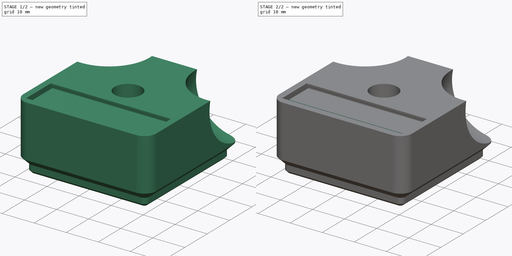
[diagram: build sequence overview — one tinted view per stage of 2, left to right]
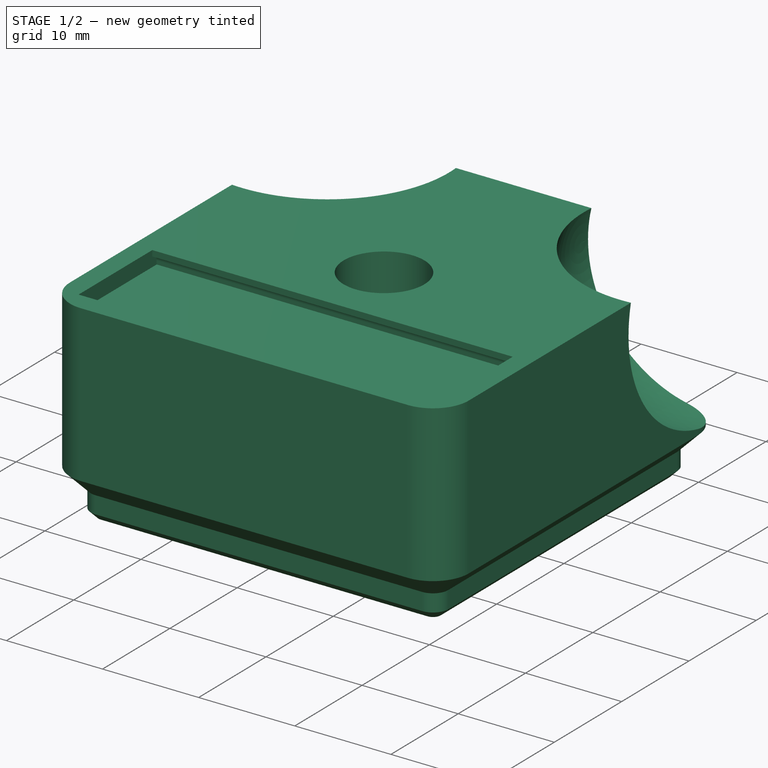
[diagram: stage 1 of 2 — iso view after this stage's code; geometry added in this stage tinted green]
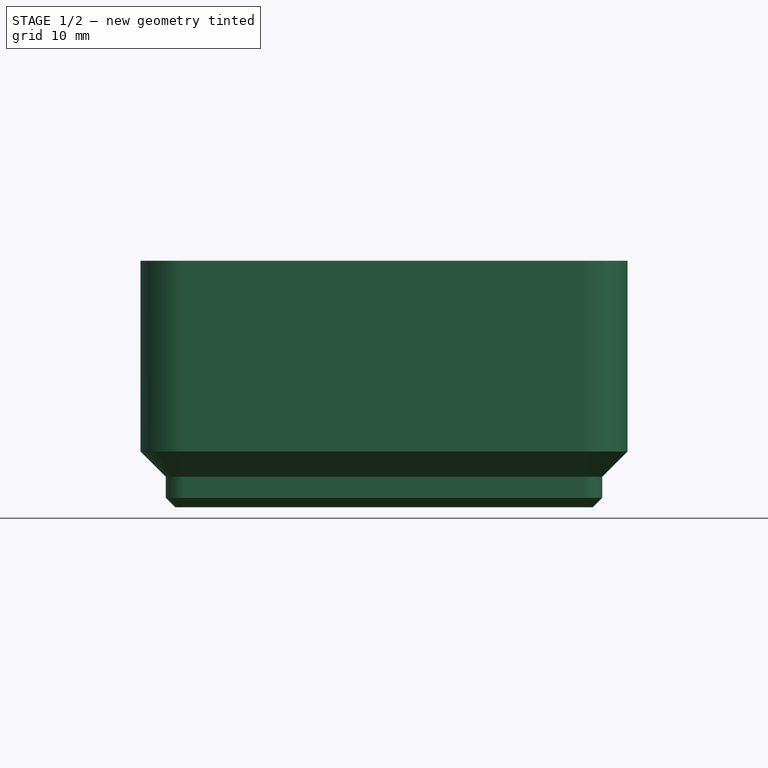
[diagram: stage 1 of 2 — front view after this stage's code; geometry added in this stage tinted green]
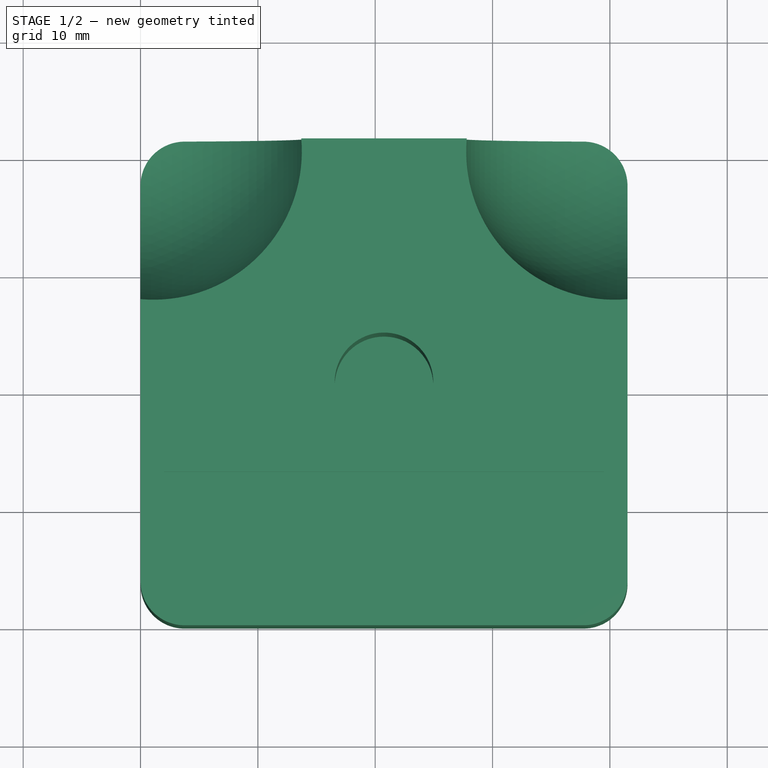
[diagram: stage 1 of 2 — top view after this stage's code; geometry added in this stage tinted green]
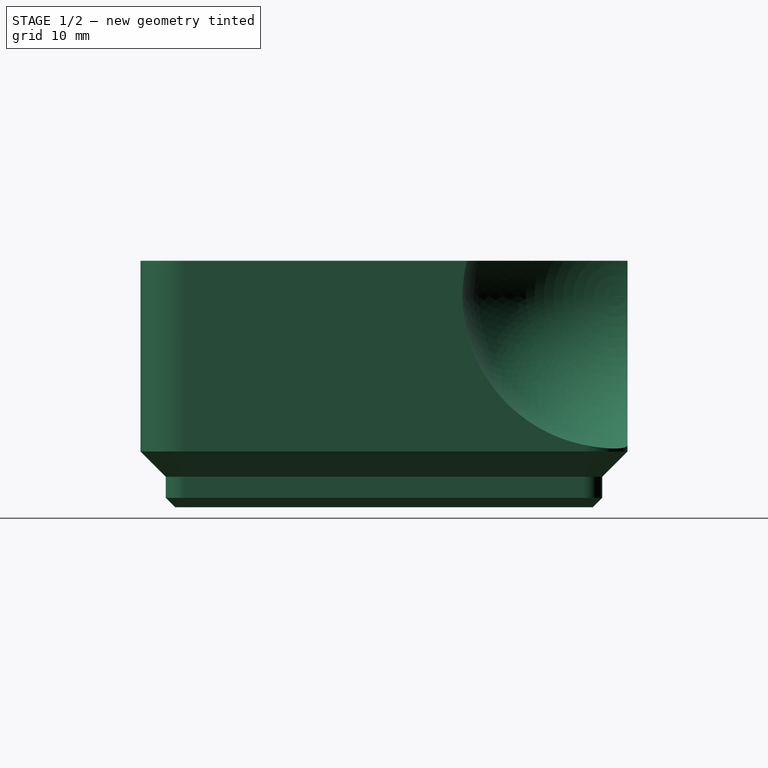
[diagram: stage 1 of 2 — right view after this stage's code; geometry added in this stage tinted green]
FCSTD DOCUMENT  (FreeCAD 1.0R39319 (Git))
Label: gridfinity-router-bit-holder_gfrouterbit8mm-remix
License: All rights reserved
LicenseURL: https://en.wikipedia.org/wiki/All_rights_reserved
objects: Sketcher::SketchObject×2, PartDesign::Pocket×2, Part::Feature×1, PartDesign::FeatureBase×1, PartDesign::Body×1
note: 14 computed .brp shape members not serialized (recipe doc carries the construction recipe); baked Part::Feature solids carry a one-line shape summary decoded from their .brp

FEATURE [Part::Feature] Part__Feature  label="GFRouterBit1-4in"
  shape: bbox 41.5 x 53.4 x 31 mm, 47 faces (baked)
FEATURE [PartDesign::FeatureBase] BaseFeature
  BaseFeature = -> Part__Feature
  Suppressed = false
FEATURE [Sketcher::SketchObject] Sketch
  ArcFitTolerance = 1e-06
  AttachmentSupport = -> [BaseFeature]
  ExternalGeometry = -> [BaseFeature]
  FullyConstrained = true
  MakeInternals = false
  MapMode = 5
  Placement = pos=(0,0,16.25) rot=(0,0,1;0rad)
  sketch-geometry (7):
    g0: LineSegment StartX=23.1749 StartY=24.95 StartZ=0 EndX=18.3251 EndY=24.95 EndZ=0
    g1: LineSegment StartX=18.3251 StartY=24.95 StartZ=0 EndX=15.9003 EndY=20.75 EndZ=0
    g2: LineSegment StartX=15.9003 StartY=20.75 StartZ=0 EndX=18.3251 EndY=16.55 EndZ=0
    g3: LineSegment StartX=18.3251 StartY=16.55 StartZ=0 EndX=23.1749 EndY=16.55 EndZ=0
    g4: LineSegment StartX=23.1749 StartY=16.55 StartZ=0 EndX=25.5997 EndY=20.75 EndZ=0
    g5: LineSegment StartX=25.5997 StartY=20.75 StartZ=0 EndX=23.1749 EndY=24.95 EndZ=0
    g6: Circle [constr] CenterX=20.75 CenterY=20.75 CenterZ=0 NormalX=0 NormalY=0 NormalZ=1 AngleXU=0 Radius=4.84974
  constraints (17):
    c: Coincident(g0,g1)
    c: Coincident(g1,g2)
    c: Coincident(g2,g3)
    c: Coincident(g3,g4)
    c: Coincident(g4,g5)
    c: Coincident(g5,g0)
    c: Equal(g0, g1-g5) x5
    c: PointOnObject(g0,g6)
    c: PointOnObject(g1,g6)
    c: PointOnObject(g2,g6)
    c: PointOnObject(g3,g6)
    c: PointOnObject(g4,g6)
    c: PointOnObject(g5,g6)
    c: Coincident(g6,g-3)
    c: Horizontal(g0)
    c: Diameter(g-3) = 8.4
    c: Tangent(g0,g-3)
FEATURE [PartDesign::Pocket] Pocket
  BaseFeature = -> BaseFeature
  Direction = (0,0,-1)
  Length = 0
  Length2 = 5
  Profile = -> Sketch
  ReferenceAxis = -> Sketch [N_Axis]
  Refine = true
  Suppressed = true
  Type = 3
  UpToFace = -> BaseFeature [Face15]
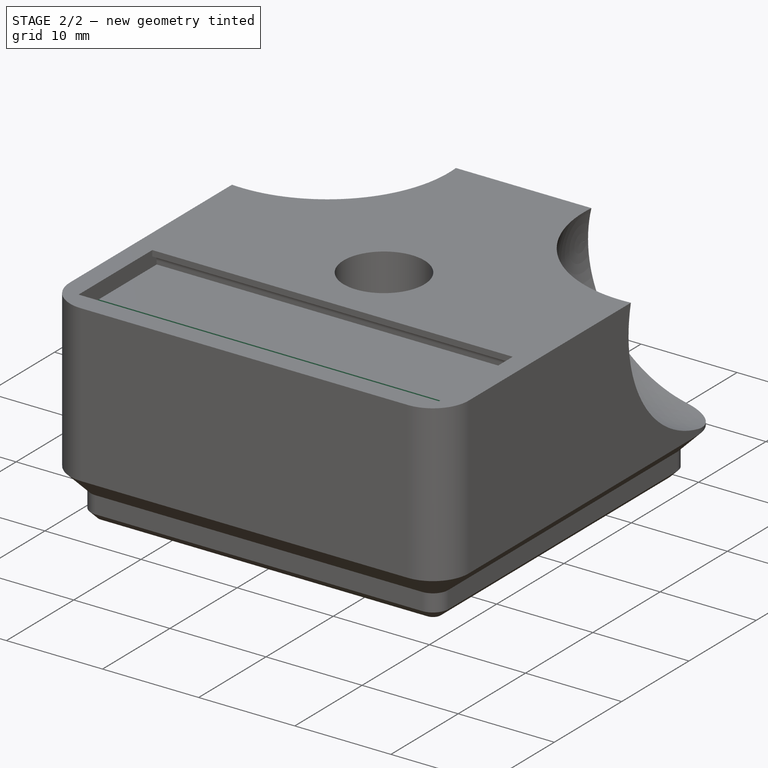
[diagram: stage 2 of 2 — iso view after this stage's code; geometry added in this stage tinted green]
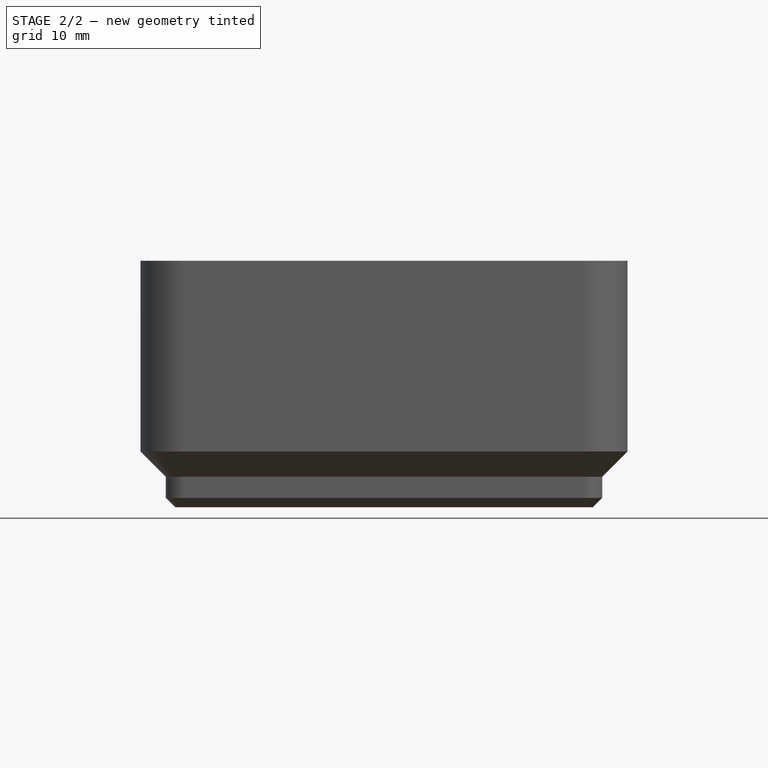
[diagram: stage 2 of 2 — front view after this stage's code; geometry added in this stage tinted green]
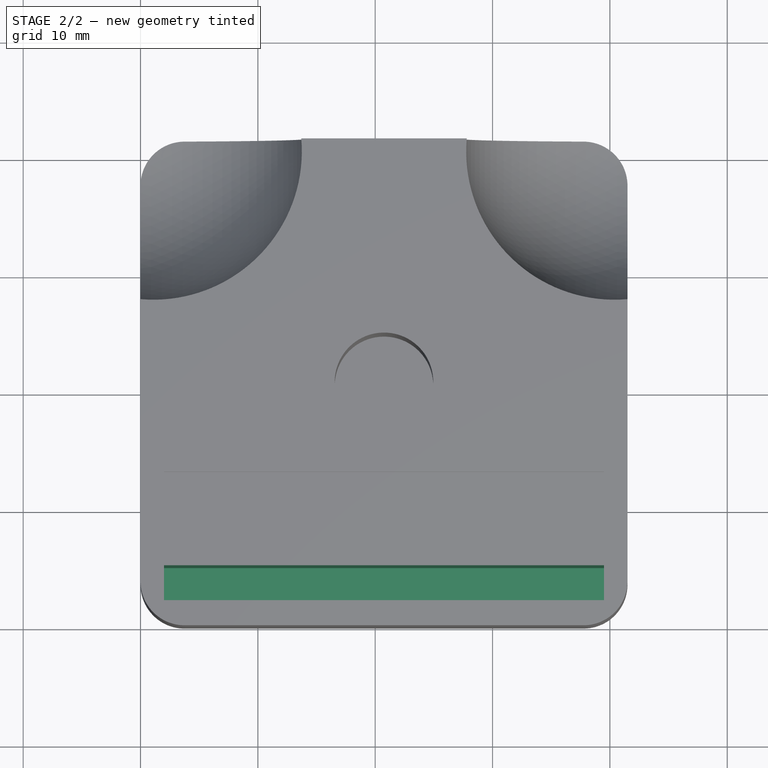
[diagram: stage 2 of 2 — top view after this stage's code; geometry added in this stage tinted green]
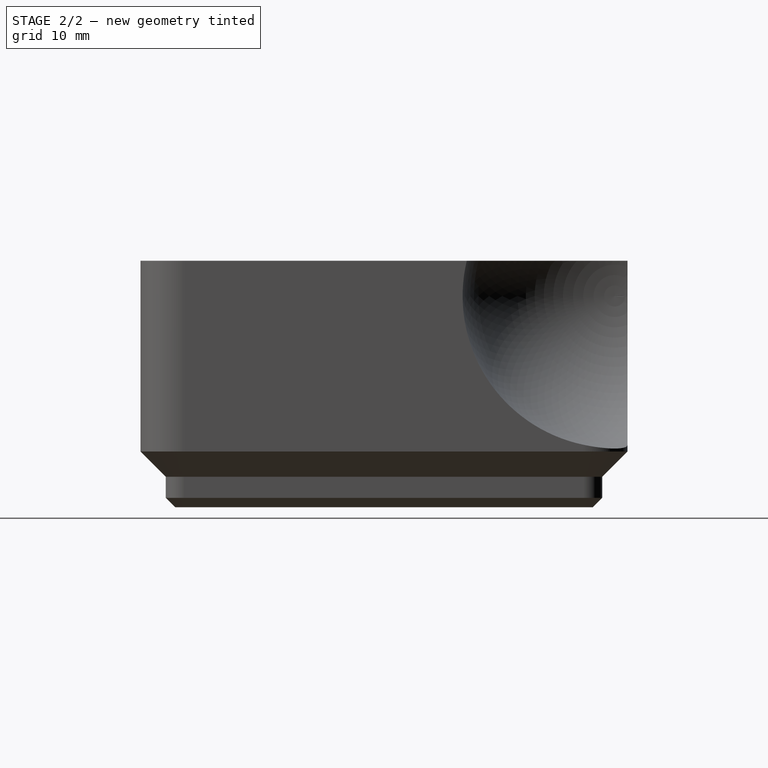
[diagram: stage 2 of 2 — right view after this stage's code; geometry added in this stage tinted green]
FEATURE [Sketcher::SketchObject] Sketch001
  ArcFitTolerance = 1e-06
  AttachmentSupport = -> [Pocket]
  ExternalGeometry = -> [Pocket]
  FullyConstrained = true
  MakeInternals = false
  MapMode = 5
  Placement = pos=(0,0,16.25) rot=(0,0,1;0rad)
  sketch-geometry (7):
    g0: GeomPoint X=20.75 Y=2.15 Z=0
    g1: LineSegment StartX=2 StartY=5.15 StartZ=0 EndX=2 EndY=2.15 EndZ=0
    g2: LineSegment StartX=2 StartY=2.15 StartZ=0 EndX=39.5 EndY=2.15 EndZ=0
    g3: LineSegment StartX=39.5 StartY=2.15 StartZ=0 EndX=39.5 EndY=5.15 EndZ=0
    g4: LineSegment StartX=39.5 StartY=5.15 StartZ=0 EndX=2 EndY=5.15 EndZ=0
    g5: GeomPoint [constr] X=20.75 Y=3.65 Z=0
    g6: LineSegment [constr] StartX=20.75 StartY=3.65 StartZ=0 EndX=20.75 EndY=2.15 EndZ=0
  constraints (15):
    c: Symmetric(g-3,g-3,g0)
    c: Coincident(g1,g2)
    c: Coincident(g2,g3)
    c: Coincident(g3,g4)
    c: Coincident(g4,g1)
    c: Vertical(g1)
    c: Vertical(g3)
    c: Horizontal(g2)
    c: Horizontal(g4)
    c: Symmetric(g3,g1,g5)
    c: Coincident(g6,g5)
    c: Coincident(g6,g0)
    c: Vertical(g6)
    c: DistanceY(g1,g1) = 3
    c: Coincident(g1,g-3)
FEATURE [PartDesign::Pocket] Pocket001
  BaseFeature = -> Pocket
  Direction = (0,0,-1)
  Length = 16
  Length2 = 5
  Profile = -> Sketch001
  ReferenceAxis = -> Sketch001 [N_Axis]
  Refine = true
  Suppressed = false
  Type = 0
FEATURE [PartDesign::Body] Body
  AllowCompound = false
  BaseFeature = -> Part__Feature
  Group = -> [BaseFeature,Sketch,Pocket,Sketch001,Pocket001]
  Origin = -> Origin
  Tip = -> Pocket001
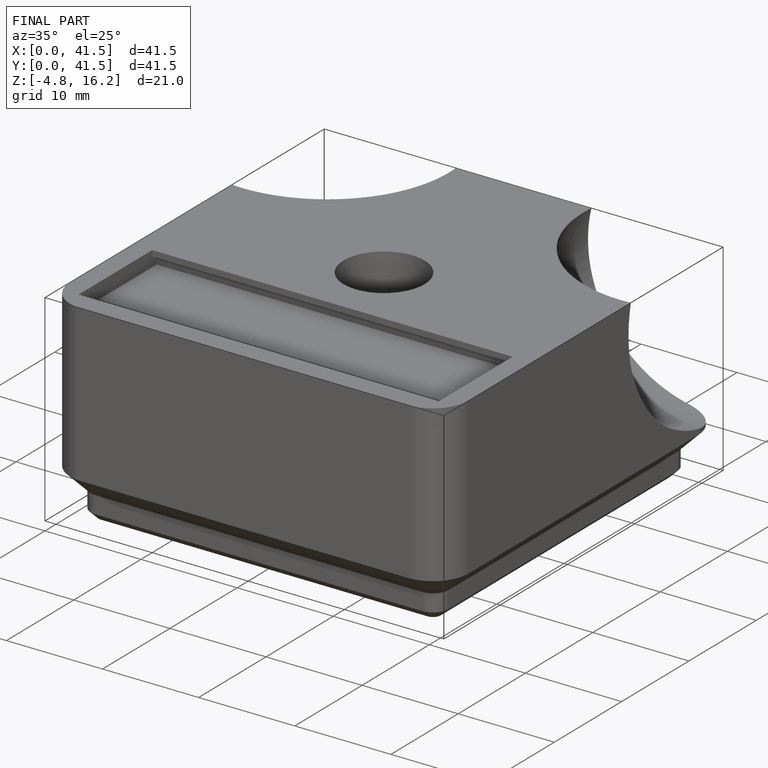
[diagram: finished part — iso view with bounding-box wireframe]
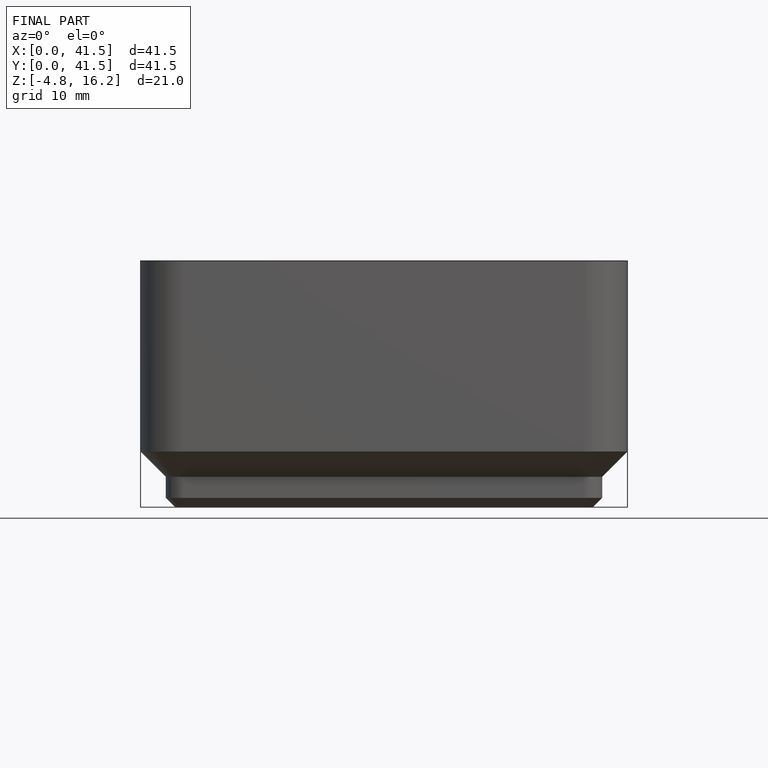
[diagram: finished part — front view with bounding-box wireframe]
